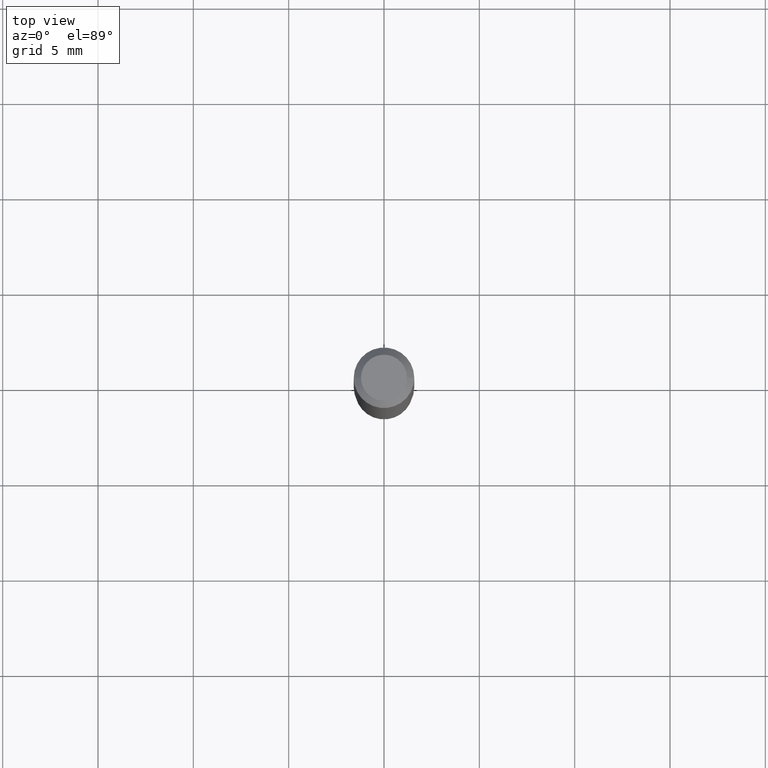
[diagram: clean part render]
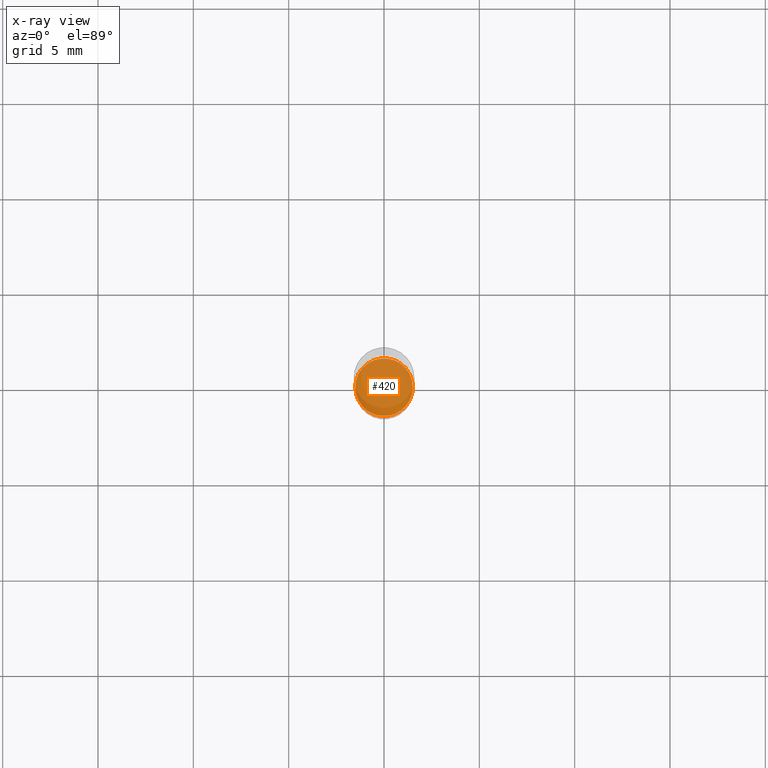
[diagram: x-ray — body ghosted, one internal face saturated and labeled with its STEP entity id]
A machine part, top view, then the same camera in x-ray: the body is ghosted and one INTERNAL B-rep face — a face not visible from any outside direction — is saturated and labeled: STEP entity #420.
In plain terms, the highlighted planar face has unit normal (-0, 0, 1).
Its self-contained STEP definition (entity closure, byte-faithful):
#16 = CARTESIAN_POINT ( 'NONE',  ( 2.787834439051055989E-29, -3.980288726281186698E-15, -1.140000000000000124 ) ) ;
#51 = DIRECTION ( 'NONE',  ( 1.000000000000000000, -6.982962677686265922E-15, 4.876176775795935793E-29 ) ) ;
#56 = DIRECTION ( 'NONE',  ( -2.445468806185136597E-29, 3.491481338843145583E-15, 1.000000000000000000 ) ) ;
#80 = ORIENTED_EDGE ( 'NONE', *, *, #83, .F. ) ;
#81 = ORIENTED_EDGE ( 'NONE', *, *, #260, .F. ) ;
#83 = EDGE_CURVE ( 'NONE', #115, #111, #460, .T. ) ;
#87 = DIRECTION ( 'NONE',  ( -2.438088387897960049E-29, 3.491481338843145188E-15, 1.000000000000000000 ) ) ;
#111 = VERTEX_POINT ( 'NONE', #136 ) ;
#115 = VERTEX_POINT ( 'NONE', #204 ) ;
#127 = PLANE ( 'NONE',  #338 ) ;
#136 = CARTESIAN_POINT ( 'NONE',  ( -0.05949999999999999734, -3.554866571329815905E-15, -1.140000000000000124 ) ) ;
#139 = CARTESIAN_POINT ( 'NONE',  ( 2.787834439051055989E-29, -3.980288726281186698E-15, -1.140000000000000124 ) ) ;
#183 = CIRCLE ( 'NONE', #373, 0.05949999999999999734 ) ;
#204 = CARTESIAN_POINT ( 'NONE',  ( 0.05949999999999999734, -4.395775005603518747E-15, -1.140000000000000124 ) ) ;
#222 = EDGE_LOOP ( 'NONE', ( #80, #81 ) ) ;
#260 = EDGE_CURVE ( 'NONE', #111, #115, #183, .T. ) ;
#312 = AXIS2_PLACEMENT_3D ( 'NONE', #342, #56, #448 ) ;
#338 = AXIS2_PLACEMENT_3D ( 'NONE', #16, #87, #51 ) ;
#342 = CARTESIAN_POINT ( 'NONE',  ( 2.787834439051055989E-29, -3.980288726281186698E-15, -1.140000000000000124 ) ) ;
#350 = DIRECTION ( 'NONE',  ( -2.445468806185136597E-29, 3.491481338843145583E-15, 1.000000000000000000 ) ) ;
#370 = FACE_OUTER_BOUND ( 'NONE', #222, .T. ) ;
#373 = AXIS2_PLACEMENT_3D ( 'NONE', #139, #350, #386 ) ;
#386 = DIRECTION ( 'NONE',  ( 1.000000000000000000, -6.982962677686259611E-15, 0.000000000000000000 ) ) ;
#420 = ADVANCED_FACE ( 'NONE', ( #370 ), #127, .F. ) ;
#448 = DIRECTION ( 'NONE',  ( 1.000000000000000000, -6.982962677686259611E-15, 0.000000000000000000 ) ) ;
#460 = CIRCLE ( 'NONE', #312, 0.05949999999999999734 ) ;